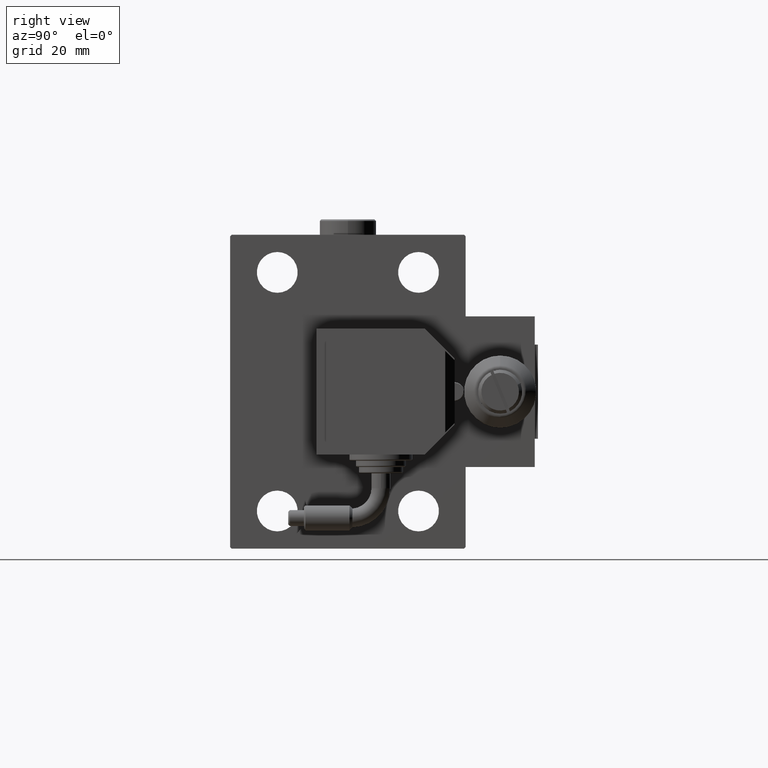
[diagram: clean part render]
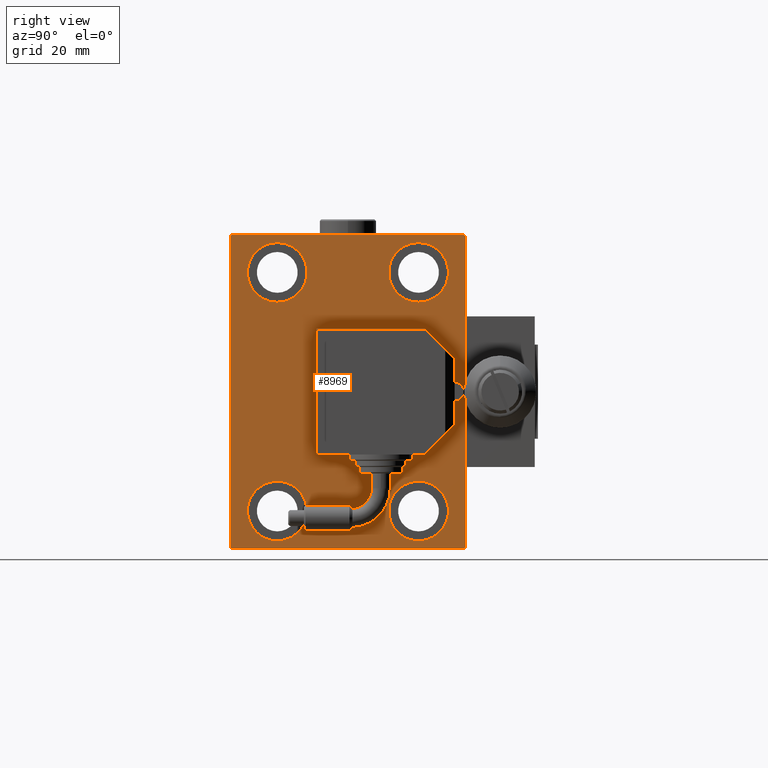
[diagram: same view with one face highlighted and labeled with its STEP entity id]
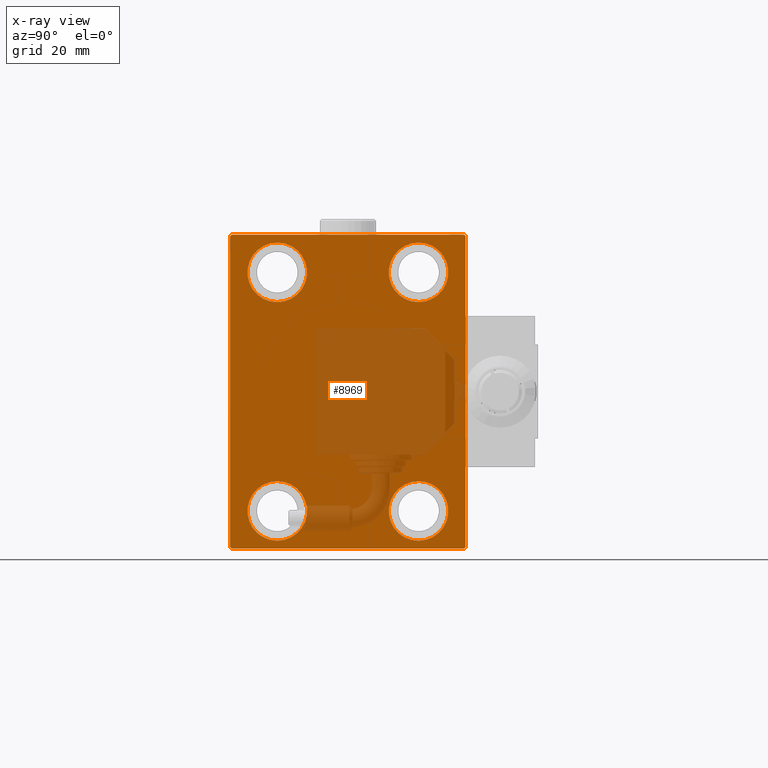
[diagram: x-ray of the same camera — body ghosted, the highlighted face saturated]
A machine part, right view. The second image highlights one B-rep face of the part: STEP entity #8969.
The next image is the same camera in x-ray: the body ghosted, the highlighted face saturated — about 32% of this face is hidden behind the body in this view.
In plain terms, the highlighted planar face has unit normal (1, 0, 0).
Its self-contained STEP definition (entity closure, byte-faithful):
#127 = PLANE ( 'NONE',  #13779 ) ;
#149 = DIRECTION ( 'NONE',  ( -1.000000000000000000, -0.000000000000000000, -0.000000000000000000 ) ) ;
#408 = EDGE_CURVE ( 'NONE', #4803, #21350, #5990, .T. ) ;
#536 = CARTESIAN_POINT ( 'NONE',  ( 98.00000000000000000, 43.50000000000026290, 43.49999999999965894 ) ) ;
#920 = EDGE_LOOP ( 'NONE', ( #30844, #10052 ) ) ;
#1343 = CARTESIAN_POINT ( 'NONE',  ( 98.00000000000000000, -22.50000000000000711, -47.49999999999999289 ) ) ;
#2144 = CARTESIAN_POINT ( 'NONE',  ( 98.00000000000000000, -22.49999999999999645, 28.49999999999998934 ) ) ;
#2977 = CARTESIAN_POINT ( 'NONE',  ( 98.00000000000000000, -22.50000000000000711, -37.99999999999999289 ) ) ;
#2985 = CARTESIAN_POINT ( 'NONE',  ( 98.00000000000000000, 22.49999999999999645, -47.49999999999999289 ) ) ;
#3593 = FACE_BOUND ( 'NONE', #920, .T. ) ;
#3831 = EDGE_LOOP ( 'NONE', ( #34346, #23428, #24930, #37140, #24009, #37670, #3836, #49749 ) ) ;
#3836 = ORIENTED_EDGE ( 'NONE', *, *, #21826, .T. ) ;
#4566 = EDGE_CURVE ( 'NONE', #40205, #7195, #36927, .T. ) ;
#4698 = VECTOR ( 'NONE', #45164, 1000.000000000000000 ) ;
#4803 = VERTEX_POINT ( 'NONE', #29115 ) ;
#5768 = DIRECTION ( 'NONE',  ( -0.000000000000000000, 0.7071067811865474617, 0.7071067811865474617 ) ) ;
#5990 = CIRCLE ( 'NONE', #30586, 9.500000000000001776 ) ;
#6106 = VECTOR ( 'NONE', #16742, 999.9999999999998863 ) ;
#6428 = ORIENTED_EDGE ( 'NONE', *, *, #19668, .T. ) ;
#6752 = CARTESIAN_POINT ( 'NONE',  ( 98.00000000000000000, -22.49999999999999645, 37.99999999999999289 ) ) ;
#7195 = VERTEX_POINT ( 'NONE', #36881 ) ;
#7421 = CARTESIAN_POINT ( 'NONE',  ( 98.00000000000000000, -36.99999999999999289, -50.00000000000000711 ) ) ;
#7489 = DIRECTION ( 'NONE',  ( -1.000000000000000000, -0.000000000000000000, -0.000000000000000000 ) ) ;
#8208 = DIRECTION ( 'NONE',  ( 0.000000000000000000, 0.000000000000000000, 1.000000000000000000 ) ) ;
#8627 = DIRECTION ( 'NONE',  ( -1.000000000000000000, -0.000000000000000000, -0.000000000000000000 ) ) ;
#8969 = ADVANCED_FACE ( 'NONE', ( #12094, #24307, #23785, #3593, #19528 ), #127, .T. ) ;
#9122 = AXIS2_PLACEMENT_3D ( 'NONE', #2977, #7489, #47854 ) ;
#9616 = DIRECTION ( 'NONE',  ( -0.000000000000000000, 0.7071067811865474617, -0.7071067811865474617 ) ) ;
#10052 = ORIENTED_EDGE ( 'NONE', *, *, #29410, .T. ) ;
#10199 = EDGE_CURVE ( 'NONE', #15682, #45250, #39685, .T. ) ;
#10234 = CARTESIAN_POINT ( 'NONE',  ( 98.00000000000000000, 37.49999999999999289, 49.50000000000000000 ) ) ;
#10714 = VERTEX_POINT ( 'NONE', #1343 ) ;
#10760 = DIRECTION ( 'NONE',  ( 0.000000000000000000, 1.000000000000000000, 9.251858538542970348E-17 ) ) ;
#11595 = CARTESIAN_POINT ( 'NONE',  ( 98.00000000000000000, -22.49999999999999645, 37.99999999999999289 ) ) ;
#12094 = FACE_BOUND ( 'NONE', #18482, .T. ) ;
#12413 = DIRECTION ( 'NONE',  ( 0.000000000000000000, 0.000000000000000000, -1.000000000000000000 ) ) ;
#12764 = LINE ( 'NONE', #28976, #4698 ) ;
#13779 = AXIS2_PLACEMENT_3D ( 'NONE', #28042, #35998, #16073 ) ;
#15682 = VERTEX_POINT ( 'NONE', #7421 ) ;
#16059 = DIRECTION ( 'NONE',  ( -1.000000000000000000, -0.000000000000000000, -0.000000000000000000 ) ) ;
#16073 = DIRECTION ( 'NONE',  ( 0.000000000000000000, 0.000000000000000000, -1.000000000000000000 ) ) ;
#16140 = EDGE_CURVE ( 'NONE', #21350, #4803, #20805, .T. ) ;
#16742 = DIRECTION ( 'NONE',  ( -0.000000000000000000, -0.7071067811865425767, 0.7071067811865525687 ) ) ;
#16910 = VECTOR ( 'NONE', #12413, 1000.000000000000000 ) ;
#16946 = VECTOR ( 'NONE', #9616, 1000.000000000000114 ) ;
#16983 = CARTESIAN_POINT ( 'NONE',  ( 98.00000000000000000, 37.00000000000000711, -50.00000000000000000 ) ) ;
#17388 = CIRCLE ( 'NONE', #36906, 9.500000000000001776 ) ;
#17426 = CARTESIAN_POINT ( 'NONE',  ( 98.00000000000000000, 43.50000000000000711, -43.50000000000000711 ) ) ;
#17693 = EDGE_CURVE ( 'NONE', #45250, #46447, #21685, .T. ) ;
#17938 = VERTEX_POINT ( 'NONE', #48861 ) ;
#17997 = VERTEX_POINT ( 'NONE', #44619 ) ;
#18482 = EDGE_LOOP ( 'NONE', ( #19185, #26713 ) ) ;
#18977 = CARTESIAN_POINT ( 'NONE',  ( 98.00000000000000000, -37.50000000000000711, -50.00000000000000711 ) ) ;
#19185 = ORIENTED_EDGE ( 'NONE', *, *, #33967, .T. ) ;
#19528 = FACE_OUTER_BOUND ( 'NONE', #3831, .T. ) ;
#19668 = EDGE_CURVE ( 'NONE', #22803, #44344, #17388, .T. ) ;
#20134 = EDGE_CURVE ( 'NONE', #7195, #24070, #12764, .T. ) ;
#20158 = DIRECTION ( 'NONE',  ( -1.000000000000000000, -0.000000000000000000, -0.000000000000000000 ) ) ;
#20805 = CIRCLE ( 'NONE', #30156, 9.500000000000001776 ) ;
#21157 = CARTESIAN_POINT ( 'NONE',  ( 98.00000000000000000, -37.50000000000000711, 49.99999999999999289 ) ) ;
#21350 = VERTEX_POINT ( 'NONE', #2144 ) ;
#21685 = LINE ( 'NONE', #17426, #45411 ) ;
#21826 = EDGE_CURVE ( 'NONE', #46447, #40205, #36555, .T. ) ;
#22444 = EDGE_CURVE ( 'NONE', #24070, #38920, #37415, .T. ) ;
#22803 = VERTEX_POINT ( 'NONE', #32267 ) ;
#22807 = LINE ( 'NONE', #33789, #16946 ) ;
#23428 = ORIENTED_EDGE ( 'NONE', *, *, #22444, .T. ) ;
#23785 = FACE_BOUND ( 'NONE', #33923, .T. ) ;
#23828 = DIRECTION ( 'NONE',  ( 0.000000000000000000, -1.387778780781445676E-16, 1.000000000000000000 ) ) ;
#23893 = VERTEX_POINT ( 'NONE', #2985 ) ;
#24009 = ORIENTED_EDGE ( 'NONE', *, *, #10199, .T. ) ;
#24070 = VERTEX_POINT ( 'NONE', #42086 ) ;
#24296 = DIRECTION ( 'NONE',  ( 0.000000000000000000, 0.000000000000000000, 1.000000000000000000 ) ) ;
#24307 = FACE_BOUND ( 'NONE', #47355, .T. ) ;
#24930 = ORIENTED_EDGE ( 'NONE', *, *, #37396, .T. ) ;
#26157 = DIRECTION ( 'NONE',  ( 0.000000000000000000, 0.000000000000000000, 1.000000000000000000 ) ) ;
#26322 = CIRCLE ( 'NONE', #51738, 9.500000000000001776 ) ;
#26713 = ORIENTED_EDGE ( 'NONE', *, *, #34946, .T. ) ;
#28029 = DIRECTION ( 'NONE',  ( 0.000000000000000000, 0.000000000000000000, 1.000000000000000000 ) ) ;
#28042 = CARTESIAN_POINT ( 'NONE',  ( 98.00000000000000000, 0.000000000000000000, 0.000000000000000000 ) ) ;
#28609 = CARTESIAN_POINT ( 'NONE',  ( 98.00000000000000000, 37.50000000000000711, -50.00000000000000000 ) ) ;
#28976 = CARTESIAN_POINT ( 'NONE',  ( 98.00000000000000000, 37.49999999999999289, 50.00000000000000711 ) ) ;
#29091 = DIRECTION ( 'NONE',  ( 0.000000000000000000, 0.000000000000000000, 1.000000000000000000 ) ) ;
#29115 = CARTESIAN_POINT ( 'NONE',  ( 98.00000000000000000, -22.49999999999999645, 47.49999999999999289 ) ) ;
#29303 = DIRECTION ( 'NONE',  ( 0.000000000000000000, 0.000000000000000000, 1.000000000000000000 ) ) ;
#29410 = EDGE_CURVE ( 'NONE', #17938, #10714, #51550, .T. ) ;
#29759 = CARTESIAN_POINT ( 'NONE',  ( 98.00000000000000000, -37.50000000000000711, 49.49999999999997868 ) ) ;
#30156 = AXIS2_PLACEMENT_3D ( 'NONE', #11595, #149, #36272 ) ;
#30586 = AXIS2_PLACEMENT_3D ( 'NONE', #6752, #47115, #26157 ) ;
#30844 = ORIENTED_EDGE ( 'NONE', *, *, #35472, .T. ) ;
#31227 = CARTESIAN_POINT ( 'NONE',  ( 98.00000000000000000, 22.50000000000000355, 37.99999999999999289 ) ) ;
#31359 = ORIENTED_EDGE ( 'NONE', *, *, #41981, .T. ) ;
#31636 = VERTEX_POINT ( 'NONE', #37274 ) ;
#32267 = CARTESIAN_POINT ( 'NONE',  ( 98.00000000000000000, 22.50000000000000355, 47.49999999999999289 ) ) ;
#32405 = ORIENTED_EDGE ( 'NONE', *, *, #408, .T. ) ;
#32547 = CARTESIAN_POINT ( 'NONE',  ( 98.00000000000000000, 22.50000000000000355, 28.49999999999998934 ) ) ;
#33117 = LINE ( 'NONE', #21157, #16910 ) ;
#33789 = CARTESIAN_POINT ( 'NONE',  ( 98.00000000000000000, -43.50000000000000000, -43.50000000000000000 ) ) ;
#33809 = DIRECTION ( 'NONE',  ( -1.000000000000000000, -0.000000000000000000, -0.000000000000000000 ) ) ;
#33923 = EDGE_LOOP ( 'NONE', ( #31359, #6428 ) ) ;
#33967 = EDGE_CURVE ( 'NONE', #23893, #31636, #39869, .T. ) ;
#34346 = ORIENTED_EDGE ( 'NONE', *, *, #20134, .T. ) ;
#34946 = EDGE_CURVE ( 'NONE', #31636, #23893, #26322, .T. ) ;
#35341 = VECTOR ( 'NONE', #23828, 1000.000000000000000 ) ;
#35472 = EDGE_CURVE ( 'NONE', #10714, #17938, #39907, .T. ) ;
#35549 = AXIS2_PLACEMENT_3D ( 'NONE', #48318, #20158, #8208 ) ;
#35998 = DIRECTION ( 'NONE',  ( 1.000000000000000000, 0.000000000000000000, 0.000000000000000000 ) ) ;
#36272 = DIRECTION ( 'NONE',  ( 0.000000000000000000, 0.000000000000000000, 1.000000000000000000 ) ) ;
#36507 = CARTESIAN_POINT ( 'NONE',  ( 98.00000000000000000, 22.49999999999999645, -37.99999999999999289 ) ) ;
#36555 = LINE ( 'NONE', #28609, #35341 ) ;
#36881 = CARTESIAN_POINT ( 'NONE',  ( 98.00000000000000000, 36.99999999999999289, 50.00000000000000711 ) ) ;
#36906 = AXIS2_PLACEMENT_3D ( 'NONE', #48156, #33809, #29303 ) ;
#36927 = LINE ( 'NONE', #536, #6106 ) ;
#37140 = ORIENTED_EDGE ( 'NONE', *, *, #38263, .T. ) ;
#37274 = CARTESIAN_POINT ( 'NONE',  ( 98.00000000000000000, 22.49999999999999645, -28.49999999999998934 ) ) ;
#37320 = AXIS2_PLACEMENT_3D ( 'NONE', #44743, #16059, #24296 ) ;
#37396 = EDGE_CURVE ( 'NONE', #38920, #17997, #33117, .T. ) ;
#37415 = LINE ( 'NONE', #49370, #43822 ) ;
#37670 = ORIENTED_EDGE ( 'NONE', *, *, #17693, .T. ) ;
#37951 = DIRECTION ( 'NONE',  ( 0.000000000000000000, -0.7071067811865474617, -0.7071067811865474617 ) ) ;
#38263 = EDGE_CURVE ( 'NONE', #17997, #15682, #22807, .T. ) ;
#38791 = ORIENTED_EDGE ( 'NONE', *, *, #16140, .T. ) ;
#38920 = VERTEX_POINT ( 'NONE', #29759 ) ;
#39459 = DIRECTION ( 'NONE',  ( -1.000000000000000000, -0.000000000000000000, -0.000000000000000000 ) ) ;
#39685 = LINE ( 'NONE', #18977, #51116 ) ;
#39869 = CIRCLE ( 'NONE', #37320, 9.500000000000001776 ) ;
#39907 = CIRCLE ( 'NONE', #35549, 9.500000000000001776 ) ;
#40205 = VERTEX_POINT ( 'NONE', #10234 ) ;
#41981 = EDGE_CURVE ( 'NONE', #44344, #22803, #42564, .T. ) ;
#42086 = CARTESIAN_POINT ( 'NONE',  ( 98.00000000000000000, -36.99999999999999289, 49.99999999999999289 ) ) ;
#42564 = CIRCLE ( 'NONE', #46804, 9.500000000000001776 ) ;
#43822 = VECTOR ( 'NONE', #37951, 1000.000000000000114 ) ;
#44344 = VERTEX_POINT ( 'NONE', #32547 ) ;
#44578 = CARTESIAN_POINT ( 'NONE',  ( 98.00000000000000000, 37.50000000000000711, -49.50000000000000000 ) ) ;
#44619 = CARTESIAN_POINT ( 'NONE',  ( 98.00000000000000000, -37.50000000000000711, -49.49999999999999289 ) ) ;
#44743 = CARTESIAN_POINT ( 'NONE',  ( 98.00000000000000000, 22.49999999999999645, -37.99999999999999289 ) ) ;
#45164 = DIRECTION ( 'NONE',  ( 0.000000000000000000, -1.000000000000000000, -1.850371707708594316E-16 ) ) ;
#45250 = VERTEX_POINT ( 'NONE', #16983 ) ;
#45411 = VECTOR ( 'NONE', #5768, 1000.000000000000114 ) ;
#46447 = VERTEX_POINT ( 'NONE', #44578 ) ;
#46804 = AXIS2_PLACEMENT_3D ( 'NONE', #31227, #39459, #28029 ) ;
#47115 = DIRECTION ( 'NONE',  ( -1.000000000000000000, -0.000000000000000000, -0.000000000000000000 ) ) ;
#47355 = EDGE_LOOP ( 'NONE', ( #38791, #32405 ) ) ;
#47854 = DIRECTION ( 'NONE',  ( 0.000000000000000000, 0.000000000000000000, 1.000000000000000000 ) ) ;
#48156 = CARTESIAN_POINT ( 'NONE',  ( 98.00000000000000000, 22.50000000000000355, 37.99999999999999289 ) ) ;
#48318 = CARTESIAN_POINT ( 'NONE',  ( 98.00000000000000000, -22.50000000000000711, -37.99999999999999289 ) ) ;
#48861 = CARTESIAN_POINT ( 'NONE',  ( 98.00000000000000000, -22.50000000000000711, -28.49999999999998934 ) ) ;
#49370 = CARTESIAN_POINT ( 'NONE',  ( 98.00000000000000000, -43.49999999999998579, 43.49999999999998579 ) ) ;
#49749 = ORIENTED_EDGE ( 'NONE', *, *, #4566, .T. ) ;
#51116 = VECTOR ( 'NONE', #10760, 1000.000000000000000 ) ;
#51550 = CIRCLE ( 'NONE', #9122, 9.500000000000001776 ) ;
#51738 = AXIS2_PLACEMENT_3D ( 'NONE', #36507, #8627, #29091 ) ;